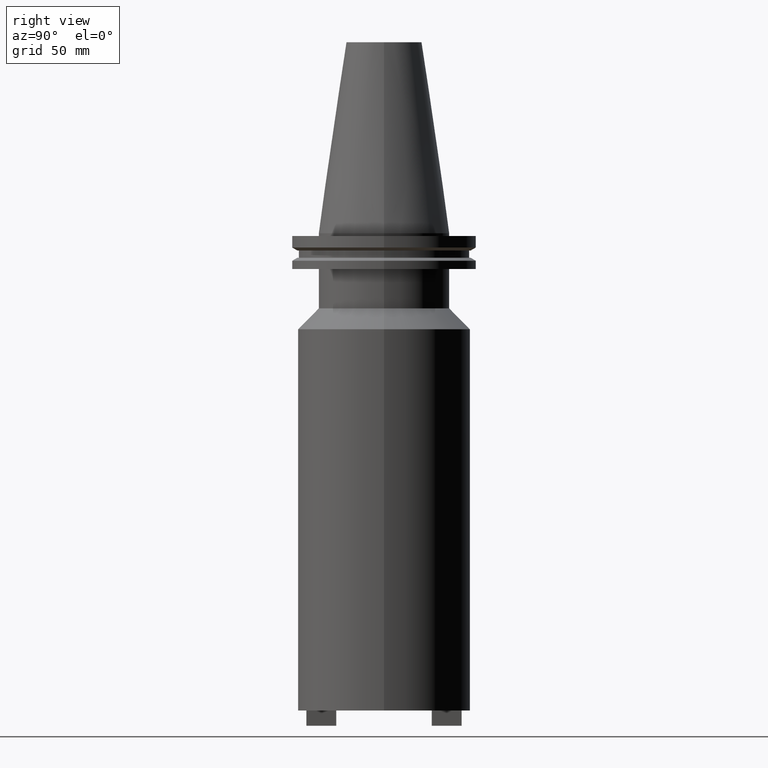
[diagram: clean part render]
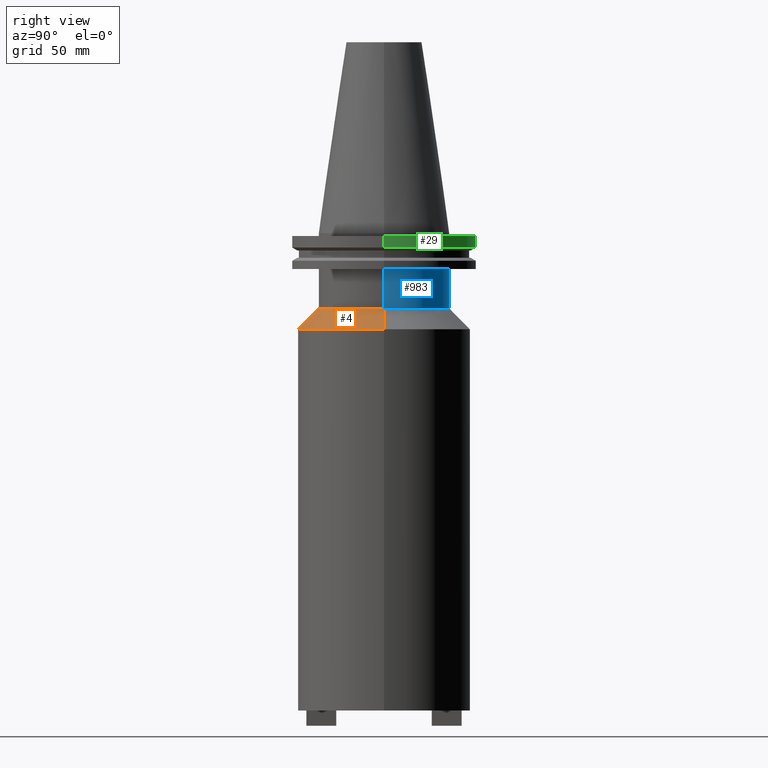
[diagram: same view with three faces highlighted in distinct colors, each labeled with its STEP entity id]
A machine part, right view with three faces highlighted in distinct colors.
Their STEP definitions:

[orange] entity #4 — the highlighted conical surface has half-angle 45 deg.
#4 = ADVANCED_FACE ( 'NONE', ( #115 ), #444, .T. ) ;
#12 = CARTESIAN_POINT ( 'NONE',  ( 0.000000000000000000, 0.000000000000000000, -51.12499999999995026 ) ) ;
#30 = AXIS2_PLACEMENT_3D ( 'NONE', #48, #817, #43 ) ;
#32 = CARTESIAN_POINT ( 'NONE',  ( -34.92499999999999716, 4.277078946022130887E-15, -39.99999999999999289 ) ) ;
#43 = DIRECTION ( 'NONE',  ( 1.000000000000000000, 0.000000000000000000, 0.000000000000000000 ) ) ;
#48 = CARTESIAN_POINT ( 'NONE',  ( 0.000000000000000000, 0.000000000000000000, -39.99999999999999289 ) ) ;
#55 = LINE ( 'NONE', #397, #984 ) ;
#115 = FACE_OUTER_BOUND ( 'NONE', #305, .T. ) ;
#152 = VERTEX_POINT ( 'NONE', #32 ) ;
#202 = AXIS2_PLACEMENT_3D ( 'NONE', #457, #302, #1060 ) ;
#252 = DIRECTION ( 'NONE',  ( -0.7071067811865489050, 0.000000000000000000, -0.7071067811865462405 ) ) ;
#254 = VERTEX_POINT ( 'NONE', #395 ) ;
#302 = DIRECTION ( 'NONE',  ( -0.000000000000000000, -0.000000000000000000, 1.000000000000000000 ) ) ;
#305 = EDGE_LOOP ( 'NONE', ( #1065, #646, #416, #464 ) ) ;
#360 = LINE ( 'NONE', #783, #468 ) ;
#395 = CARTESIAN_POINT ( 'NONE',  ( -46.04999999999999716, 0.000000000000000000, -51.12499999999995026 ) ) ;
#397 = CARTESIAN_POINT ( 'NONE',  ( 46.04999999999999716, 5.639498510073560988E-15, -51.12499999999995026 ) ) ;
#416 = ORIENTED_EDGE ( 'NONE', *, *, #1011, .T. ) ;
#434 = VERTEX_POINT ( 'NONE', #879 ) ;
#439 = EDGE_CURVE ( 'NONE', #254, #1047, #483, .T. ) ;
#444 = CONICAL_SURFACE ( 'NONE', #658, 46.04999999999999716, 0.7853981633974501664 ) ;
#457 = CARTESIAN_POINT ( 'NONE',  ( 0.000000000000000000, 0.000000000000000000, -51.12499999999995026 ) ) ;
#464 = ORIENTED_EDGE ( 'NONE', *, *, #439, .T. ) ;
#468 = VECTOR ( 'NONE', #252, 999.9999999999998863 ) ;
#483 = CIRCLE ( 'NONE', #202, 46.04999999999999716 ) ;
#521 = CIRCLE ( 'NONE', #30, 34.92499999999999716 ) ;
#530 = DIRECTION ( 'NONE',  ( -1.000000000000000000, 0.000000000000000000, 0.000000000000000000 ) ) ;
#646 = ORIENTED_EDGE ( 'NONE', *, *, #713, .F. ) ;
#658 = AXIS2_PLACEMENT_3D ( 'NONE', #12, #706, #530 ) ;
#706 = DIRECTION ( 'NONE',  ( 0.000000000000000000, 0.000000000000000000, -1.000000000000000000 ) ) ;
#713 = EDGE_CURVE ( 'NONE', #152, #434, #521, .T. ) ;
#760 = EDGE_CURVE ( 'NONE', #434, #1047, #55, .T. ) ;
#783 = CARTESIAN_POINT ( 'NONE',  ( -46.04999999999999716, 0.000000000000000000, -51.12499999999995026 ) ) ;
#817 = DIRECTION ( 'NONE',  ( -0.000000000000000000, -0.000000000000000000, 1.000000000000000000 ) ) ;
#879 = CARTESIAN_POINT ( 'NONE',  ( 34.92499999999999716, 0.000000000000000000, -39.99999999999999289 ) ) ;
#984 = VECTOR ( 'NONE', #1079, 999.9999999999998863 ) ;
#1011 = EDGE_CURVE ( 'NONE', #152, #254, #360, .T. ) ;
#1042 = CARTESIAN_POINT ( 'NONE',  ( 46.04999999999999716, 5.639498510073560988E-15, -51.12499999999995026 ) ) ;
#1047 = VERTEX_POINT ( 'NONE', #1042 ) ;
#1060 = DIRECTION ( 'NONE',  ( 1.000000000000000000, 0.000000000000000000, 0.000000000000000000 ) ) ;
#1065 = ORIENTED_EDGE ( 'NONE', *, *, #760, .F. ) ;
#1079 = DIRECTION ( 'NONE',  ( 0.7071067811865489050, 8.659560562354950115E-17, -0.7071067811865462405 ) ) ;

[blue] entity #983 — the highlighted cylindrical surface (partial cylindrical patch) has radius 34.925 mm, axis along (-0, -0, 1).
#32 = CARTESIAN_POINT ( 'NONE',  ( -34.92499999999999716, 4.277078946022130887E-15, -39.99999999999999289 ) ) ;
#33 = AXIS2_PLACEMENT_3D ( 'NONE', #818, #307, #491 ) ;
#51 = EDGE_CURVE ( 'NONE', #152, #1007, #458, .T. ) ;
#66 = LINE ( 'NONE', #229, #986 ) ;
#143 = CIRCLE ( 'NONE', #911, 34.92499999999999716 ) ;
#152 = VERTEX_POINT ( 'NONE', #32 ) ;
#191 = ORIENTED_EDGE ( 'NONE', *, *, #51, .T. ) ;
#196 = VECTOR ( 'NONE', #527, 1000.000000000000000 ) ;
#212 = EDGE_LOOP ( 'NONE', ( #262, #191, #470, #476 ) ) ;
#225 = CARTESIAN_POINT ( 'NONE',  ( 34.92499999999999716, 0.000000000000000000, -19.04999999999999716 ) ) ;
#229 = CARTESIAN_POINT ( 'NONE',  ( 34.92499999999999716, 0.000000000000000000, 101.5999999999999943 ) ) ;
#262 = ORIENTED_EDGE ( 'NONE', *, *, #314, .T. ) ;
#307 = DIRECTION ( 'NONE',  ( -0.000000000000000000, -0.000000000000000000, 1.000000000000000000 ) ) ;
#314 = EDGE_CURVE ( 'NONE', #434, #152, #143, .T. ) ;
#403 = DIRECTION ( 'NONE',  ( 1.000000000000000000, 0.000000000000000000, 0.000000000000000000 ) ) ;
#405 = DIRECTION ( 'NONE',  ( -0.000000000000000000, -0.000000000000000000, 1.000000000000000000 ) ) ;
#434 = VERTEX_POINT ( 'NONE', #879 ) ;
#458 = LINE ( 'NONE', #787, #196 ) ;
#470 = ORIENTED_EDGE ( 'NONE', *, *, #845, .F. ) ;
#476 = ORIENTED_EDGE ( 'NONE', *, *, #1092, .F. ) ;
#491 = DIRECTION ( 'NONE',  ( 1.000000000000000000, 0.000000000000000000, 0.000000000000000000 ) ) ;
#515 = FACE_OUTER_BOUND ( 'NONE', #212, .T. ) ;
#527 = DIRECTION ( 'NONE',  ( -0.000000000000000000, -0.000000000000000000, 1.000000000000000000 ) ) ;
#555 = AXIS2_PLACEMENT_3D ( 'NONE', #700, #1028, #1034 ) ;
#656 = CARTESIAN_POINT ( 'NONE',  ( 0.000000000000000000, 0.000000000000000000, -39.99999999999999289 ) ) ;
#700 = CARTESIAN_POINT ( 'NONE',  ( 0.000000000000000000, 0.000000000000000000, 101.5999999999999943 ) ) ;
#736 = DIRECTION ( 'NONE',  ( -0.000000000000000000, -0.000000000000000000, 1.000000000000000000 ) ) ;
#764 = VERTEX_POINT ( 'NONE', #225 ) ;
#787 = CARTESIAN_POINT ( 'NONE',  ( -34.92499999999999716, 4.277078946022130887E-15, 101.5999999999999943 ) ) ;
#818 = CARTESIAN_POINT ( 'NONE',  ( 0.000000000000000000, 0.000000000000000000, -19.04999999999999716 ) ) ;
#845 = EDGE_CURVE ( 'NONE', #764, #1007, #919, .T. ) ;
#879 = CARTESIAN_POINT ( 'NONE',  ( 34.92499999999999716, 0.000000000000000000, -39.99999999999999289 ) ) ;
#911 = AXIS2_PLACEMENT_3D ( 'NONE', #656, #736, #403 ) ;
#919 = CIRCLE ( 'NONE', #33, 34.92499999999999716 ) ;
#936 = CYLINDRICAL_SURFACE ( 'NONE', #555, 34.92499999999999716 ) ;
#946 = CARTESIAN_POINT ( 'NONE',  ( -34.92499999999999716, 4.277078946022130887E-15, -19.04999999999999716 ) ) ;
#983 = ADVANCED_FACE ( 'NONE', ( #515 ), #936, .T. ) ;
#986 = VECTOR ( 'NONE', #405, 1000.000000000000000 ) ;
#1007 = VERTEX_POINT ( 'NONE', #946 ) ;
#1028 = DIRECTION ( 'NONE',  ( -0.000000000000000000, -0.000000000000000000, 1.000000000000000000 ) ) ;
#1034 = DIRECTION ( 'NONE',  ( 1.000000000000000000, 0.000000000000000000, 0.000000000000000000 ) ) ;
#1092 = EDGE_CURVE ( 'NONE', #434, #764, #66, .T. ) ;

[green] entity #29 — the highlighted cylindrical surface (partial cylindrical patch) has radius 49.215 mm, axis along (-0, -0, 1).
#2 = VERTEX_POINT ( 'NONE', #782 ) ;
#3 = DIRECTION ( 'NONE',  ( -0.000000000000000000, -0.000000000000000000, 1.000000000000000000 ) ) ;
#8 = ORIENTED_EDGE ( 'NONE', *, *, #1009, .F. ) ;
#16 = EDGE_CURVE ( 'NONE', #539, #455, #609, .T. ) ;
#18 = CARTESIAN_POINT ( 'NONE',  ( 0.000000000000000000, 0.000000000000000000, 101.5999999999999943 ) ) ;
#29 = ADVANCED_FACE ( 'NONE', ( #443 ), #102, .T. ) ;
#102 = CYLINDRICAL_SURFACE ( 'NONE', #318, 49.21499999999999631 ) ;
#103 = LINE ( 'NONE', #938, #236 ) ;
#110 = DIRECTION ( 'NONE',  ( 1.000000000000000000, 0.000000000000000000, 0.000000000000000000 ) ) ;
#129 = EDGE_CURVE ( 'NONE', #539, #1003, #710, .T. ) ;
#177 = CARTESIAN_POINT ( 'NONE',  ( 49.21499999999999631, 0.000000000000000000, 101.5999999999999943 ) ) ;
#185 = CARTESIAN_POINT ( 'NONE',  ( -49.21500000000000341, 6.027099222003699404E-15, -7.602389855251287187 ) ) ;
#236 = VECTOR ( 'NONE', #1101, 1000.000000000000000 ) ;
#318 = AXIS2_PLACEMENT_3D ( 'NONE', #18, #800, #691 ) ;
#326 = DIRECTION ( 'NONE',  ( -0.000000000000000000, -0.000000000000000000, 1.000000000000000000 ) ) ;
#348 = EDGE_CURVE ( 'NONE', #1003, #2, #103, .T. ) ;
#364 = CARTESIAN_POINT ( 'NONE',  ( 49.21499999999999631, 0.000000000000000000, -1.499999999999987566 ) ) ;
#366 = ORIENTED_EDGE ( 'NONE', *, *, #129, .T. ) ;
#412 = CIRCLE ( 'NONE', #932, 49.21499999999999631 ) ;
#426 = VECTOR ( 'NONE', #968, 1000.000000000000000 ) ;
#443 = FACE_OUTER_BOUND ( 'NONE', #1093, .T. ) ;
#455 = VERTEX_POINT ( 'NONE', #364 ) ;
#539 = VERTEX_POINT ( 'NONE', #583 ) ;
#583 = CARTESIAN_POINT ( 'NONE',  ( 49.21500000000000341, 0.000000000000000000, -7.602389855251287187 ) ) ;
#609 = LINE ( 'NONE', #177, #426 ) ;
#691 = DIRECTION ( 'NONE',  ( 1.000000000000000000, 0.000000000000000000, 0.000000000000000000 ) ) ;
#710 = CIRCLE ( 'NONE', #1069, 49.21500000000000341 ) ;
#767 = ORIENTED_EDGE ( 'NONE', *, *, #348, .T. ) ;
#782 = CARTESIAN_POINT ( 'NONE',  ( -49.21499999999999631, 6.027099222003697826E-15, -1.499999999999987566 ) ) ;
#800 = DIRECTION ( 'NONE',  ( -0.000000000000000000, -0.000000000000000000, 1.000000000000000000 ) ) ;
#867 = ORIENTED_EDGE ( 'NONE', *, *, #16, .F. ) ;
#925 = DIRECTION ( 'NONE',  ( 1.000000000000000000, 0.000000000000000000, 0.000000000000000000 ) ) ;
#932 = AXIS2_PLACEMENT_3D ( 'NONE', #960, #3, #110 ) ;
#938 = CARTESIAN_POINT ( 'NONE',  ( -49.21499999999999631, 6.027099222003697826E-15, 101.5999999999999943 ) ) ;
#960 = CARTESIAN_POINT ( 'NONE',  ( 0.000000000000000000, 0.000000000000000000, -1.499999999999987566 ) ) ;
#968 = DIRECTION ( 'NONE',  ( -0.000000000000000000, -0.000000000000000000, 1.000000000000000000 ) ) ;
#1003 = VERTEX_POINT ( 'NONE', #185 ) ;
#1009 = EDGE_CURVE ( 'NONE', #455, #2, #412, .T. ) ;
#1069 = AXIS2_PLACEMENT_3D ( 'NONE', #1094, #326, #925 ) ;
#1093 = EDGE_LOOP ( 'NONE', ( #366, #767, #8, #867 ) ) ;
#1094 = CARTESIAN_POINT ( 'NONE',  ( 0.000000000000000000, 0.000000000000000000, -7.602389855251287187 ) ) ;
#1101 = DIRECTION ( 'NONE',  ( -0.000000000000000000, -0.000000000000000000, 1.000000000000000000 ) ) ;